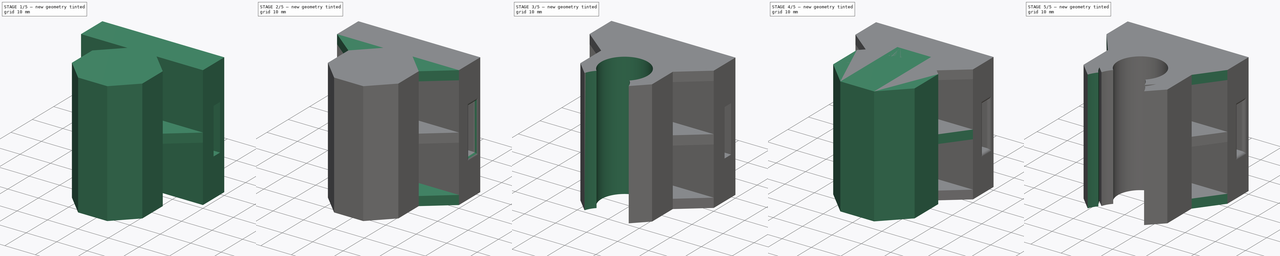
[diagram: build sequence overview — one tinted view per stage of 5, left to right]
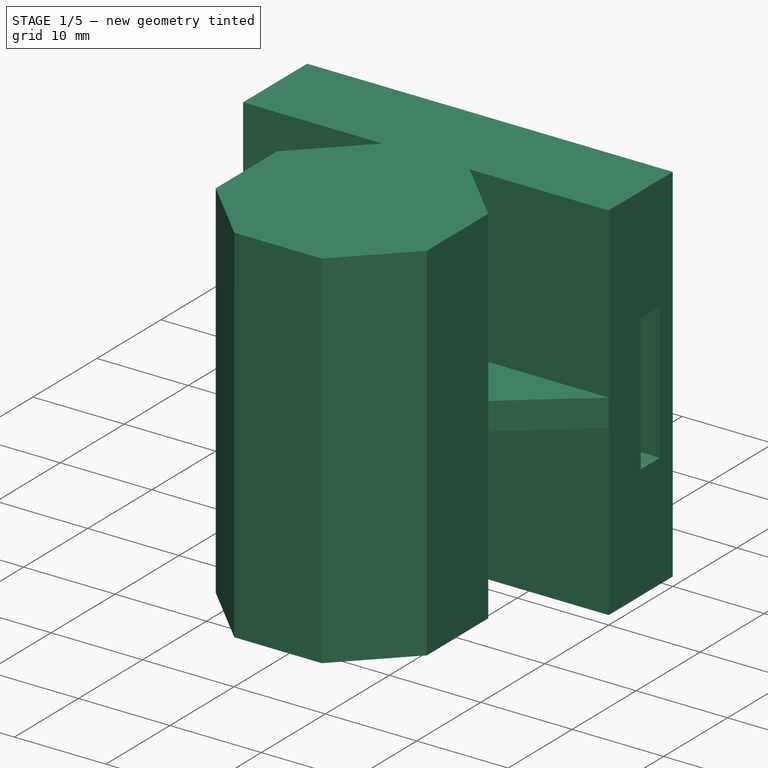
[diagram: stage 1 of 5 — iso view after this stage's code; geometry added in this stage tinted green]
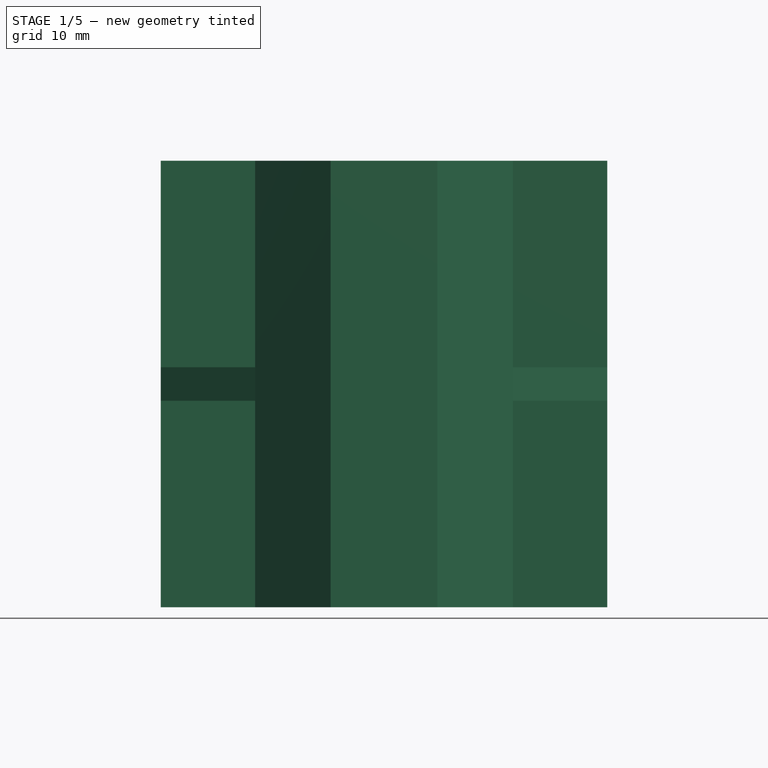
[diagram: stage 1 of 5 — front view after this stage's code; geometry added in this stage tinted green]
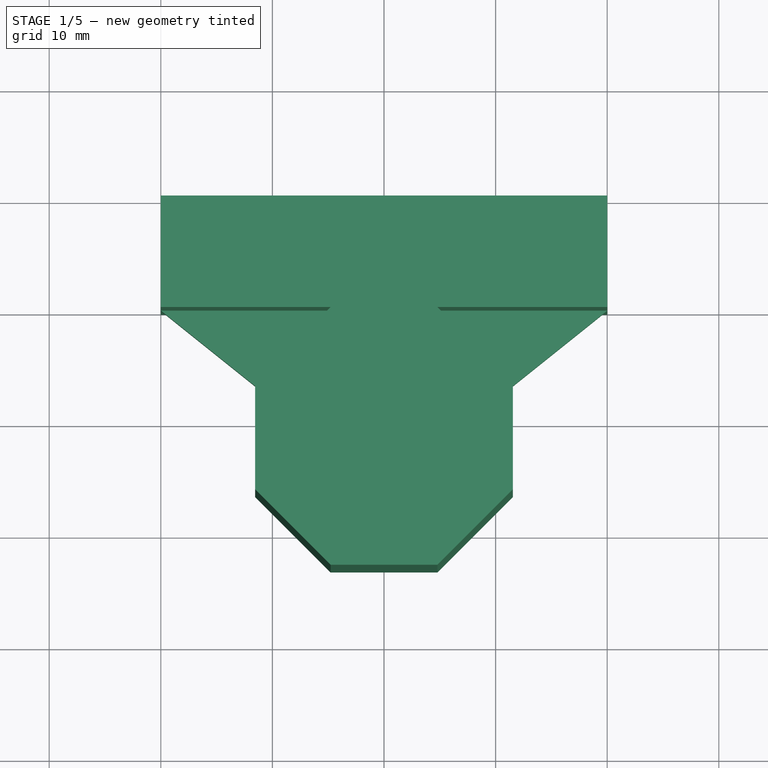
[diagram: stage 1 of 5 — top view after this stage's code; geometry added in this stage tinted green]
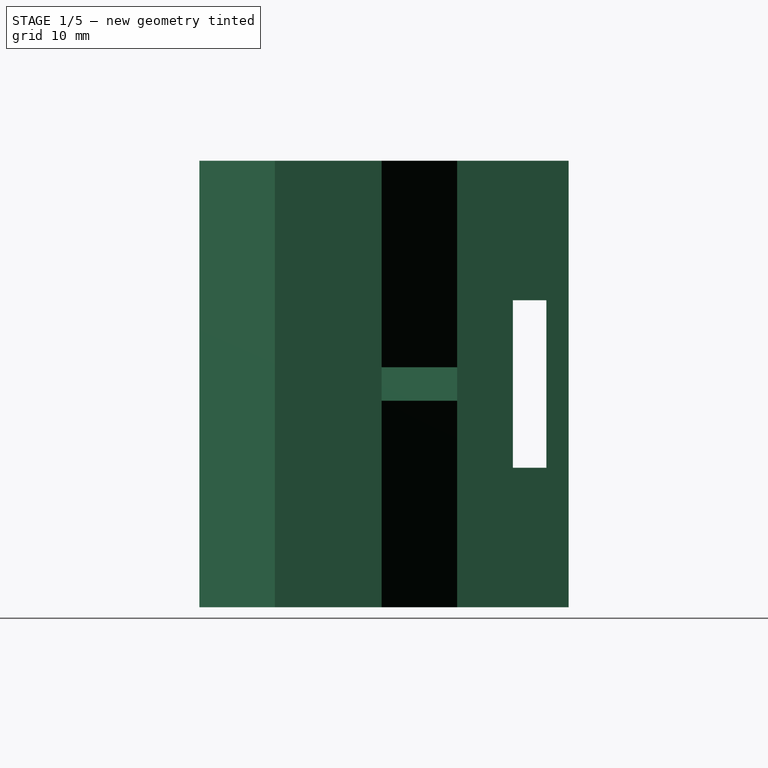
[diagram: stage 1 of 5 — right view after this stage's code; geometry added in this stage tinted green]
FCSTD DOCUMENT  (FreeCAD 0.19R24267 +148 (Git))
Label: rod_holder_shimano
License: All rights reserved
LicenseURL: http://en.wikipedia.org/wiki/All_rights_reserved
objects: Sketcher::SketchObject×12, PartDesign::Pad×6, PartDesign::Pocket×6, PartDesign::LinearPattern×4, Spreadsheet::Sheet×2, PartDesign::Fillet×2, PartDesign::Body×2
note: 46 computed .brp shape members not serialized (recipe doc carries the construction recipe); baked Part::Feature solids carry a one-line shape summary decoded from their .brp

FEATURE [PartDesign::Body] Body  label="large_holder"
  Group = -> [Sketch,Pad,Sketch001,Pocket,Sketch002,Pad001,Sketch003,Sketch004,Pad002,Fillet,LinearPattern,LinearPattern001,Pocket001,Sketch005,Pocket002]
  Origin = -> Origin
  Tip = -> Pocket002
FEATURE [Spreadsheet::Sheet] Spreadsheet001  label="Dimensions001"
  cells = A1=base_width; B1(base_width)=40; C1=rod_top_dia; D1(rod_top_dia)=15; E1=rod_bot_dia; F1(rod_bot_dia)=15; G1=loop_hole_height; H1(loop_hole_height)=15; I1=holder_thickness; J1(holder_thickness)=10; K1=gusset_width; L1(gusset_width)=3; A2=base_height; B2(base_height)=40; C2=rod_top_r; D2(rod_top_r)==D1 / 2; E2=rod_bot_r; F2==F1 / 2; G2=loop_hole_width; H2(loop_hole_width)=3; A3=base_depth; B3(base_depth)=10
FEATURE [Sketcher::SketchObject] Sketch006  label="Base001"
  FullyConstrained = true
  MapMode = 5
  Placement = pos=(0,0,0) rot=(1,0,0;1.5708rad)
  Support = -> [XZ_Plane001]
  expr: Constraints[9] = <<Dimensions001>>.base_width
  expr: Constraints[10] = <<Dimensions001>>.base_height
  sketch-geometry (4):
    g0: LineSegment StartX=-20 StartY=20 StartZ=0 EndX=20 EndY=20 EndZ=0
    g1: LineSegment StartX=20 StartY=20 StartZ=0 EndX=20 EndY=-20 EndZ=0
    g2: LineSegment StartX=20 StartY=-20 StartZ=0 EndX=-20 EndY=-20 EndZ=0
    g3: LineSegment StartX=-20 StartY=-20 StartZ=0 EndX=-20 EndY=20 EndZ=0
  constraints (11):
    c: Coincident(g0,g1)
    c: Coincident(g1,g2)
    c: Coincident(g2,g3)
    c: Coincident(g3,g0)
    c: Horizontal(g0)
    c: Horizontal(g2)
    c: Vertical(g1)
    c: Vertical(g3)
    c: Symmetric(g0,g1,g-1)
    c: DistanceX(g0,g0) = 40
    c: DistanceY(g3,g3) = 40
FEATURE [Sketcher::SketchObject] Sketch007  label="holder001"
  ExternalGeometry = -> [Sketch006]
  FullyConstrained = true
  MapMode = 5
  Support = -> [XY_Plane001]
  expr: Constraints[24] = <<Dimensions001>>.rod_bot_dia + <<Dimensions001>>.holder_thickness
  sketch-geometry (9):
    g0: LineSegment StartX=4.78354 StartY=-23.097 StartZ=0 EndX=11.5485 EndY=-16.332 EndZ=0
    g1: LineSegment StartX=11.5485 StartY=-16.332 StartZ=0 EndX=11.5485 EndY=-6.76495 EndZ=0
    g2: LineSegment StartX=11.5485 StartY=-6.76495 StartZ=0 EndX=4.78354 EndY=0 EndZ=0
    g3: LineSegment StartX=4.78354 StartY=0 StartZ=0 EndX=-4.78354 EndY=0 EndZ=0
    g4: LineSegment StartX=-4.78354 StartY=0 StartZ=0 EndX=-11.5485 EndY=-6.76495 EndZ=0
    g5: LineSegment StartX=-11.5485 StartY=-6.76495 StartZ=0 EndX=-11.5485 EndY=-16.332 EndZ=0
    g6: LineSegment StartX=-11.5485 StartY=-16.332 StartZ=0 EndX=-4.78354 EndY=-23.097 EndZ=0
    g7: LineSegment StartX=-4.78354 StartY=-23.097 StartZ=0 EndX=4.78354 EndY=-23.097 EndZ=0
    g8: Circle CenterX=1.107e-13 CenterY=-11.5485 CenterZ=0 NormalX=0 NormalY=0 NormalZ=1 AngleXU=0 Radius=12.5
  constraints (20):
    c: Coincident(g0,g1)
    c: Coincident(g1,g2)
    c: Coincident(g2,g3)
    c: Coincident(g3,g4)
    c: Coincident(g4,g5)
    c: Coincident(g5,g6)
    c: Coincident(g6,g7)
    c: Coincident(g7,g0)
    c: Equal(g0, g1-g7) x7
    c: PointOnObject(g0,g8)
    c: PointOnObject(g1,g8)
    c: PointOnObject(g2,g8)
    c: PointOnObject(g3,g8)
    c: PointOnObject(g4,g8)
    c: PointOnObject(g5,g8)
    c: PointOnObject(g6,g8)
    c: PointOnObject(g7,g8)
    c: Horizontal(g3)
    c: Diameter(g8) = 25
    c: Symmetric(g3,g2,g-1)
FEATURE [Sketcher::SketchObject] Sketch008  label="gussets001"
  ExternalGeometry = -> [Sketch006,Sketch007]
  FullyConstrained = true
  MapMode = 5
  Support = -> [XY_Plane001]
  sketch-geometry (6):
    g0: LineSegment StartX=-20 StartY=4.4e-15 StartZ=0 EndX=-11.5485 EndY=-6.76495 EndZ=0
    g1: LineSegment StartX=-11.5485 StartY=-6.76495 StartZ=0 EndX=-4.78354 EndY=0 EndZ=0
    g2: LineSegment StartX=-4.78354 StartY=0 StartZ=0 EndX=-20 EndY=4.4e-15 EndZ=0
    g3: LineSegment StartX=4.78354 StartY=0 StartZ=0 EndX=20 EndY=3.6e-15 EndZ=0
    g4: LineSegment StartX=20 StartY=3.6e-15 StartZ=0 EndX=11.5485 EndY=-6.76495 EndZ=0
    g5: LineSegment StartX=11.5485 StartY=-6.76495 StartZ=0 EndX=4.78354 EndY=0 EndZ=0
  constraints (12):
    c: Coincident(g1,g0)
    c: Coincident(g2,g1)
    c: Coincident(g2,g0)
    c: Coincident(g1,g-4)
    c: Coincident(g0,g-4)
    c: Coincident(g0,g-3)
    c: Coincident(g4,g3)
    c: Coincident(g5,g4)
    c: Coincident(g5,g3)
    c: Coincident(g3,g-3)
    c: Coincident(g4,g-5)
    c: Coincident(g3,g-5)
FEATURE [Sketcher::SketchObject] Sketch009  label="Loop_hole001"
  ExternalGeometry = -> [Sketch006]
  FullyConstrained = true
  MapMode = 5
  Placement = pos=(0,0,0) rot=(0.57735,0.57735,0.57735;2.0944rad)
  Support = -> [YZ_Plane001]
  expr: Constraints[8] = <<Dimensions001>>.loop_hole_height
  expr: Constraints[9] = <<Dimensions001>>.loop_hole_width
  expr: Constraints[10] = -<<Dimensions001>>.base_depth / 2 - <<Dimensions001>>.loop_hole_width
  expr: Constraints[11] = <<Dimensions001>>.base_height / 2 - <<Dimensions001>>.loop_hole_height / 2
  sketch-geometry (4):
    g0: LineSegment StartX=5 StartY=7.5 StartZ=0 EndX=8 EndY=7.5 EndZ=0
    g1: LineSegment StartX=8 StartY=7.5 StartZ=0 EndX=8 EndY=-7.5 EndZ=0
    g2: LineSegment StartX=8 StartY=-7.5 StartZ=0 EndX=5 EndY=-7.5 EndZ=0
    g3: LineSegment StartX=5 StartY=-7.5 StartZ=0 EndX=5 EndY=7.5 EndZ=0
  constraints (12):
    c: Coincident(g0,g1)
    c: Coincident(g1,g2)
    c: Coincident(g2,g3)
    c: Coincident(g3,g0)
    c: Horizontal(g0)
    c: Horizontal(g2)
    c: Vertical(g1)
    c: Vertical(g3)
    c: DistanceY(g3,g3) = 15
    c: DistanceX(g0,g0) = 3
    c: DistanceX(g0,g-1) = -8
    c: DistanceY(g0,g-3) = 12.5
FEATURE [PartDesign::Pad] Pad003
  Direction = (1,1,1)
  Length = 10
  Length2 = 100
  Placement = pos=(0,0,0) rot=(1,0,0;1.5708rad)
  Profile = -> Sketch006
  Reversed = true
  Type = 0
  expr: Length = <<Dimensions001>>.base_depth
FEATURE [PartDesign::Pocket] Pocket003
  BaseFeature = -> Pad003
  Length = 40
  Length2 = 40
  Placement = pos=(0,0,0) rot=(1,0,0;1.5708rad)
  Profile = -> Sketch009
  Type = 4
  expr: Length = <<Dimensions001>>.base_width
  expr: Length2 = <<Dimensions001>>.base_width
FEATURE [PartDesign::Pad] Pad004
  BaseFeature = -> Pocket003
  Direction = (1,1,1)
  Length = 20
  Length2 = 20
  Placement = pos=(0,0,0) rot=(1,0,0;1.5708rad)
  Profile = -> Sketch007
  Type = 4
  expr: Length = <<Dimensions001>>.base_height / 2
  expr: Length2 = <<Dimensions001>>.base_height / 2
FEATURE [Sketcher::SketchObject] Sketch010  label="rod_cutout001"
  ExternalGeometry = -> [Sketch006,Sketch007]
  FullyConstrained = true
  MapMode = 5
  Support = -> [XY_Plane001]
  expr: Constraints[1] = <<Dimensions001>>.rod_bot_dia
  expr: Constraints[2] = <<Dimensions001>>.rod_bot_dia / 2 + <<Dimensions001>>.holder_thickness / 2
  sketch-geometry (1):
    g0: Circle CenterX=0 CenterY=-12.5 CenterZ=0 NormalX=0 NormalY=0 NormalZ=1 AngleXU=0 Radius=7.5
  constraints (3):
    c: PointOnObject(g0,g-2)
    c: Diameter(g0) = 15
    c: DistanceY(g0,g-1) = 12.5
FEATURE [Sketcher::SketchObject] Sketch011
  ExternalGeometry = -> [Sketch006,Sketch007,Sketch010]
  FullyConstrained = true
  MapMode = 5
  Support = -> [XY_Plane001]
  expr: Constraints[2] = <<Dimensions001>>.rod_bot_dia
  sketch-geometry (1):
    g0: Circle CenterX=0 CenterY=-23.097 CenterZ=0 NormalX=0 NormalY=0 NormalZ=1 AngleXU=0 Radius=7.5
  constraints (3):
    c: Perpendicular(g0,g-6)
    c: PointOnObject(g0,g-2)
    c: Diameter(g0) = 15
FEATURE [PartDesign::Pad] Pad005
  BaseFeature = -> Pad004
  Direction = (1,1,1)
  Length = 1.5
  Length2 = 1.5
  Placement = pos=(0,0,0) rot=(1,0,0;1.5708rad)
  Profile = -> Sketch008
  Reversed = true
  Type = 4
  expr: Length = <<Dimensions001>>.gusset_width / 2
  expr: Length2 = <<Dimensions001>>.gusset_width / 2
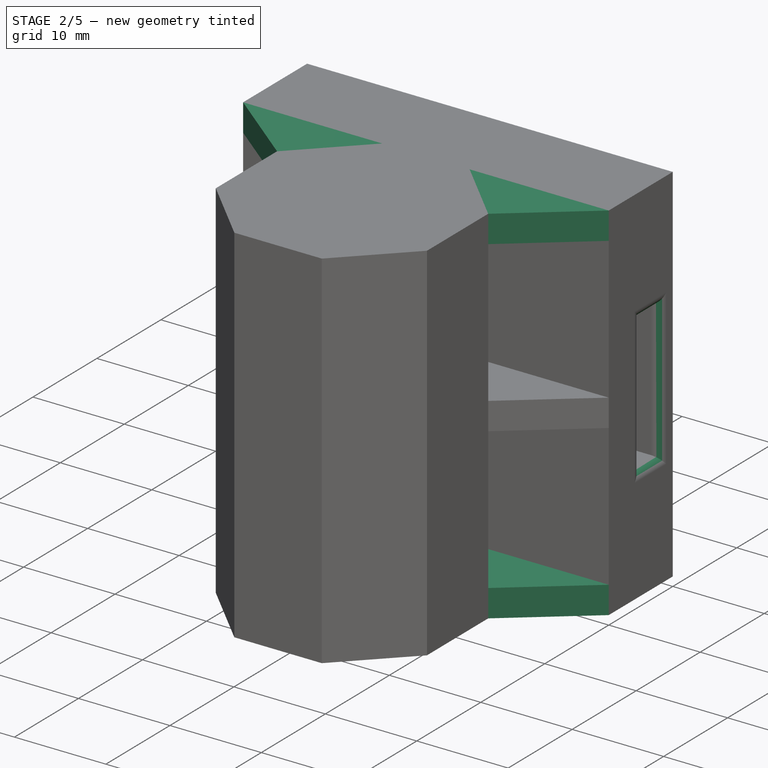
[diagram: stage 2 of 5 — iso view after this stage's code; geometry added in this stage tinted green]
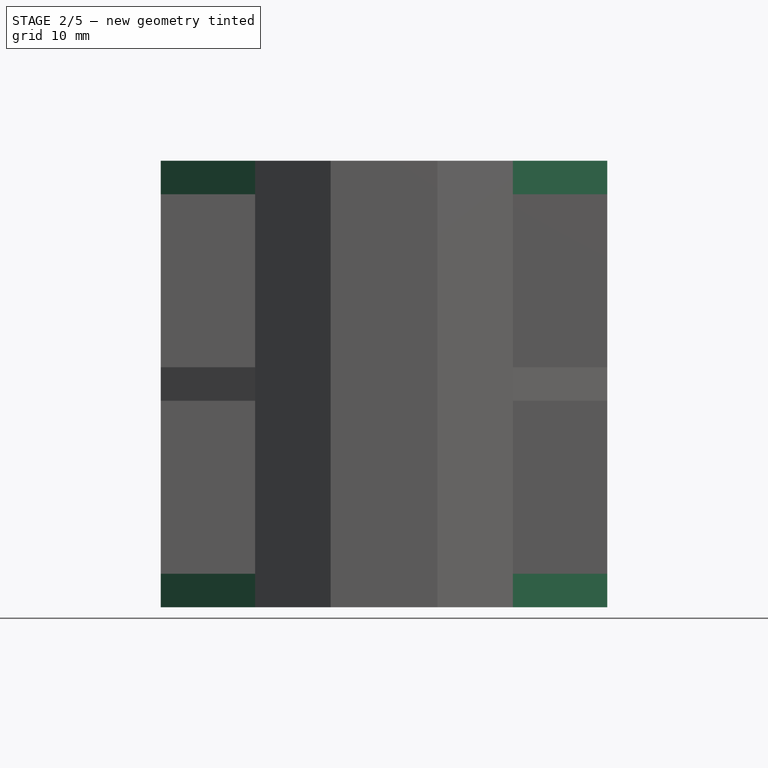
[diagram: stage 2 of 5 — front view after this stage's code; geometry added in this stage tinted green]
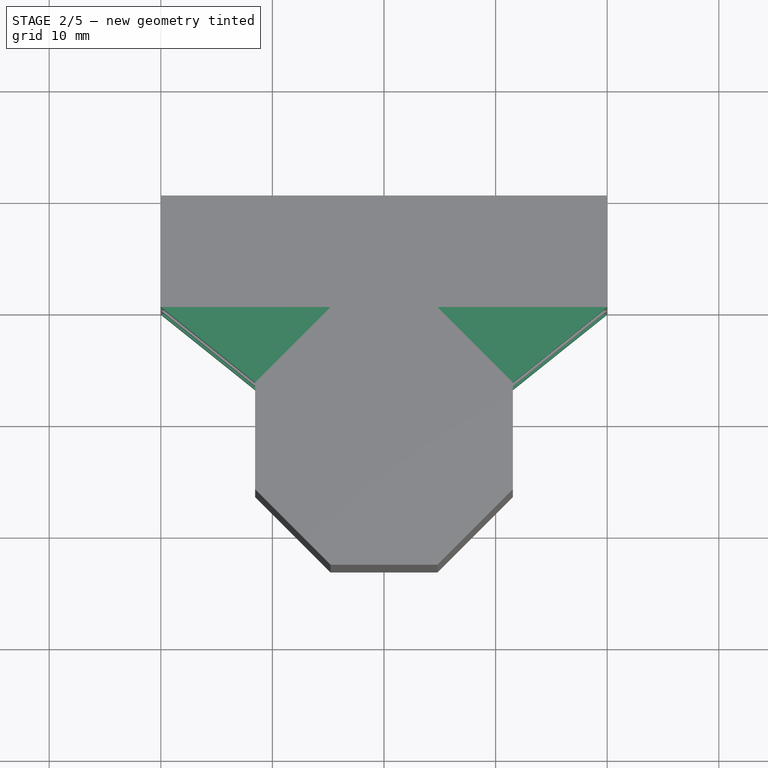
[diagram: stage 2 of 5 — top view after this stage's code; geometry added in this stage tinted green]
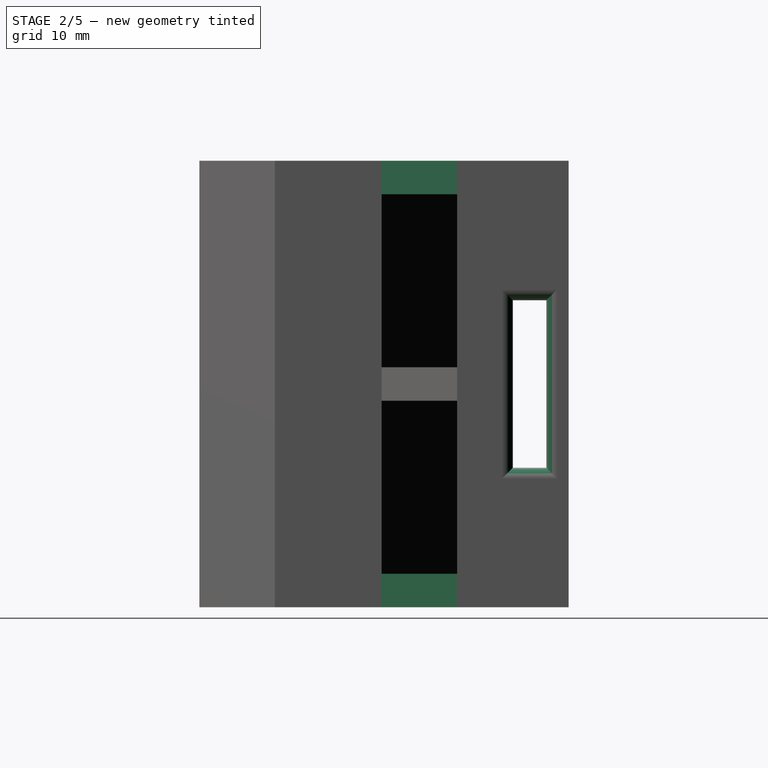
[diagram: stage 2 of 5 — right view after this stage's code; geometry added in this stage tinted green]
FEATURE [PartDesign::Fillet] Fillet001
  Base = -> Pad005 [Edge23,Edge24,Edge21,Edge22,Edge15,Edge12,Edge14,Edge13]
  BaseFeature = -> Pad005
  Placement = pos=(0,0,0) rot=(1,0,0;1.5708rad)
  Radius = 1
  SupportTransform = false
FEATURE [PartDesign::LinearPattern] LinearPattern003
  BaseFeature = -> Fillet001
  Direction = -> Sketch008 [N_Axis]
  Length = 18.5
  Occurrences = 2
  Originals = -> [Pad005]
  Placement = pos=(0,0,0) rot=(1,0,0;1.5708rad)
  Reversed = true
  expr: Length = <<Dimensions001>>.base_height / 2 - <<Dimensions001>>.gusset_width / 2
FEATURE [PartDesign::LinearPattern] LinearPattern002
  BaseFeature = -> LinearPattern003
  Direction = -> Sketch008 [N_Axis]
  Length = 18.5
  Occurrences = 2
  Originals = -> [Pad005]
  Placement = pos=(0,0,0) rot=(1,0,0;1.5708rad)
  expr: Length = <<Dimensions001>>.base_height / 2 - <<Dimensions001>>.gusset_width / 2
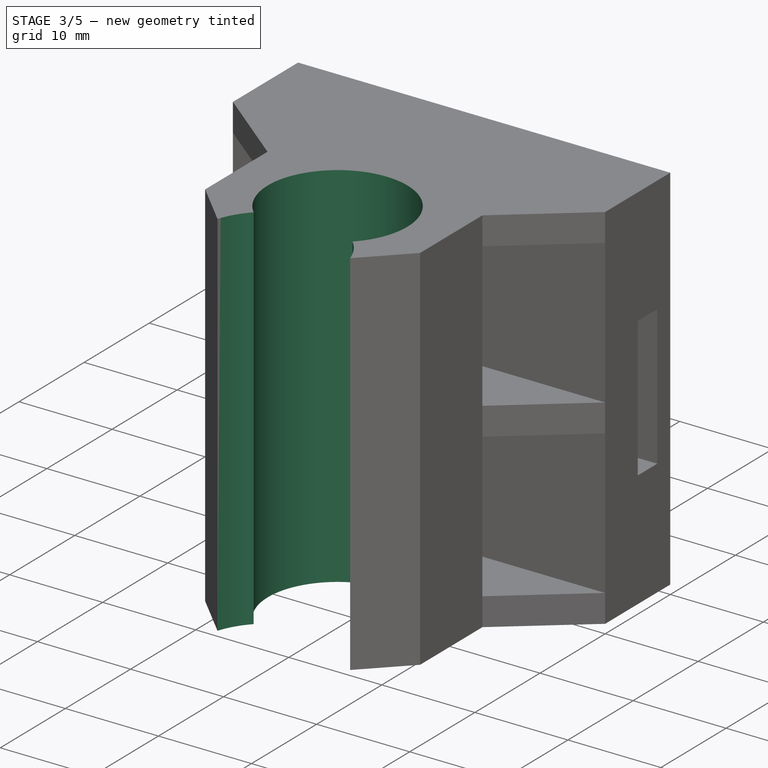
[diagram: stage 3 of 5 — iso view after this stage's code; geometry added in this stage tinted green]
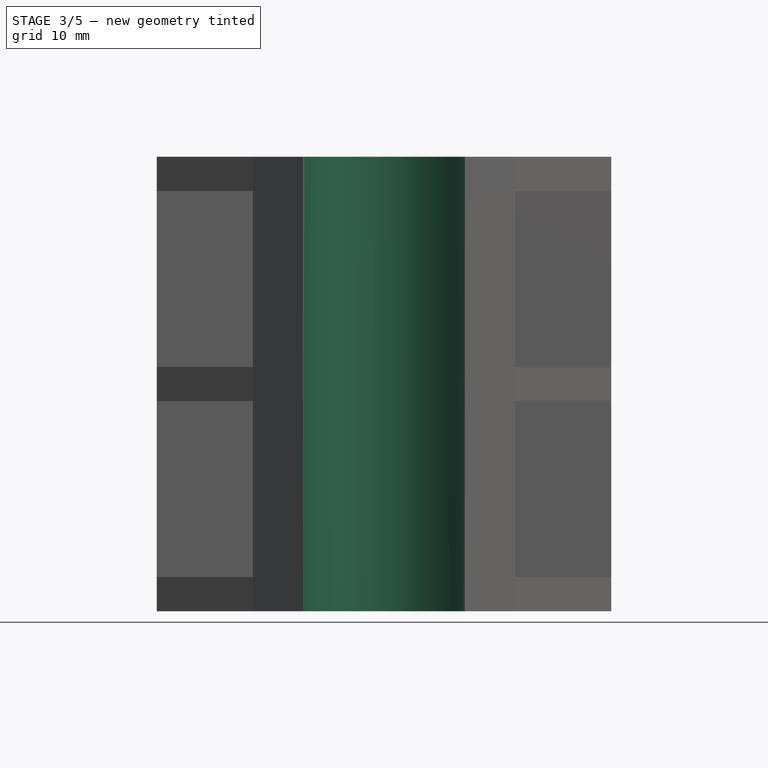
[diagram: stage 3 of 5 — front view after this stage's code; geometry added in this stage tinted green]
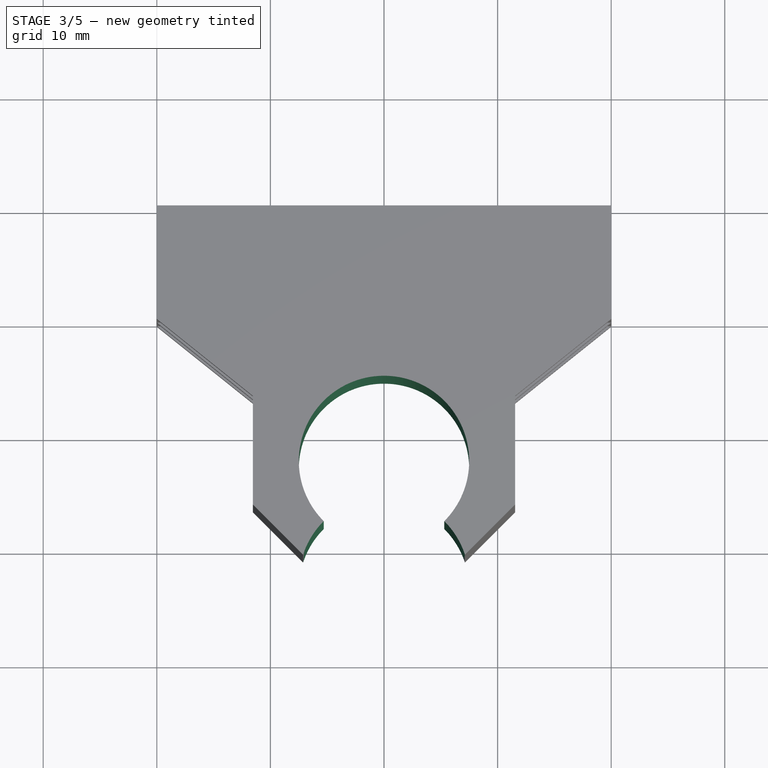
[diagram: stage 3 of 5 — top view after this stage's code; geometry added in this stage tinted green]
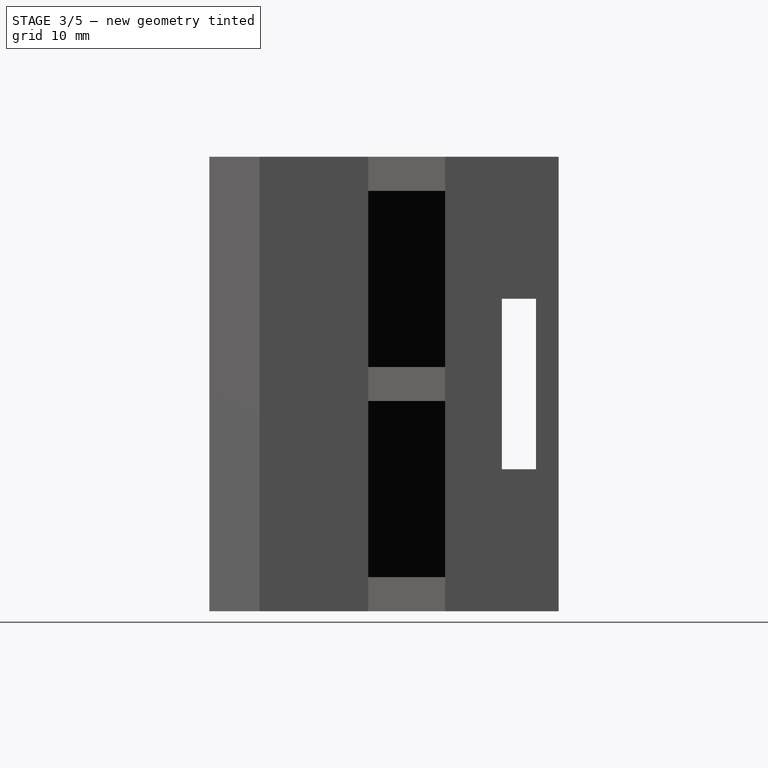
[diagram: stage 3 of 5 — right view after this stage's code; geometry added in this stage tinted green]
FEATURE [Spreadsheet::Sheet] Spreadsheet  label="Dimensions"
  cells = A1=base_width; B1(base_width)=40; C1=rod_top_dia; D1(rod_top_dia)=15; E1=rod_bot_dia; F1(rod_bot_dia)=20; G1=loop_hole_height; H1(loop_hole_height)=15; I1=holder_thickness; J1(holder_thickness)=10; K1=gusset_width; L1(gusset_width)=3; A2=base_height; B2(base_height)=40; C2=rod_top_r; D2(rod_top_r)==D1 / 2; E2=rod_bot_r; F2==F1 / 2; G2=loop_hole_width; H2(loop_hole_width)=3; A3=base_depth; B3(base_depth)=10
FEATURE [Sketcher::SketchObject] Sketch  label="Base"
  FullyConstrained = true
  MapMode = 5
  Placement = pos=(0,0,0) rot=(1,0,0;1.5708rad)
  Support = -> [XZ_Plane]
  expr: Constraints[10] = <<Dimensions>>.base_height
  expr: Constraints[9] = <<Dimensions>>.base_width
  sketch-geometry (4):
    g0: LineSegment StartX=-20 StartY=20 StartZ=0 EndX=20 EndY=20 EndZ=0
    g1: LineSegment StartX=20 StartY=20 StartZ=0 EndX=20 EndY=-20 EndZ=0
    g2: LineSegment StartX=20 StartY=-20 StartZ=0 EndX=-20 EndY=-20 EndZ=0
    g3: LineSegment StartX=-20 StartY=-20 StartZ=0 EndX=-20 EndY=20 EndZ=0
  constraints (11):
    c: Coincident(g0,g1)
    c: Coincident(g1,g2)
    c: Coincident(g2,g3)
    c: Coincident(g3,g0)
    c: Horizontal(g0)
    c: Horizontal(g2)
    c: Vertical(g1)
    c: Vertical(g3)
    c: Symmetric(g0,g1,g-1)
    c: DistanceX(g0,g0) = 40
    c: DistanceY(g3,g3) = 40
FEATURE [PartDesign::Pad] Pad
  Direction = (1,1,1)
  Length = 10
  Length2 = 100
  Placement = pos=(0,0,0) rot=(1,0,0;1.5708rad)
  Profile = -> Sketch
  Reversed = true
  Type = 0
  expr: Length = <<Dimensions>>.base_depth
FEATURE [Sketcher::SketchObject] Sketch001  label="Loop_hole"
  ExternalGeometry = -> [Sketch]
  FullyConstrained = true
  MapMode = 5
  Placement = pos=(0,0,0) rot=(0.57735,0.57735,0.57735;2.0944rad)
  Support = -> [YZ_Plane]
  expr: Constraints[11] = <<Dimensions>>.base_height / 2 - <<Dimensions>>.loop_hole_height / 2
  expr: Constraints[10] = -<<Dimensions>>.base_depth / 2 - <<Dimensions>>.loop_hole_width
  expr: Constraints[9] = <<Dimensions>>.loop_hole_width
  expr: Constraints[8] = <<Dimensions>>.loop_hole_height
  sketch-geometry (4):
    g0: LineSegment StartX=5 StartY=7.5 StartZ=0 EndX=8 EndY=7.5 EndZ=0
    g1: LineSegment StartX=8 StartY=7.5 StartZ=0 EndX=8 EndY=-7.5 EndZ=0
    g2: LineSegment StartX=8 StartY=-7.5 StartZ=0 EndX=5 EndY=-7.5 EndZ=0
    g3: LineSegment StartX=5 StartY=-7.5 StartZ=0 EndX=5 EndY=7.5 EndZ=0
  constraints (12):
    c: Coincident(g0,g1)
    c: Coincident(g1,g2)
    c: Coincident(g2,g3)
    c: Coincident(g3,g0)
    c: Horizontal(g0)
    c: Horizontal(g2)
    c: Vertical(g1)
    c: Vertical(g3)
    c: DistanceY(g3,g3) = 15
    c: DistanceX(g0,g0) = 3
    c: DistanceX(g0,g-1) = -8
    c: DistanceY(g0,g-3) = 12.5
FEATURE [PartDesign::Pocket] Pocket
  BaseFeature = -> Pad
  Length = 40
  Length2 = 40
  Placement = pos=(0,0,0) rot=(1,0,0;1.5708rad)
  Profile = -> Sketch001
  Type = 4
  expr: Length2 = <<Dimensions>>.base_width
  expr: Length = <<Dimensions>>.base_width
FEATURE [PartDesign::Pocket] Pocket004
  BaseFeature = -> LinearPattern002
  Length = 20
  Length2 = 20
  Placement = pos=(0,0,0) rot=(1,0,0;1.5708rad)
  Profile = -> Sketch010
  Type = 4
  expr: Length = <<Dimensions001>>.base_height / 2
  expr: Length2 = <<Dimensions001>>.base_height / 2
FEATURE [PartDesign::Pocket] Pocket005
  BaseFeature = -> Pocket004
  Length = 20
  Length2 = 20
  Placement = pos=(0,0,0) rot=(1,0,0;1.5708rad)
  Profile = -> Sketch011
  Type = 4
  expr: Length = <<Dimensions001>>.base_height / 2
  expr: Length2 = <<Dimensions001>>.base_height / 2
FEATURE [PartDesign::Body] Body001  label="small_holder"
  Group = -> [Sketch006,Pad003,Sketch009,Pocket003,Sketch007,Pad004,Sketch010,Sketch008,Pad005,Fillet001,LinearPattern003,LinearPattern002,Pocket004,Sketch011,Pocket005]
  Origin = -> Origin001
  Placement = pos=(50,0,0) rot=(0,0,1;0rad)
  Tip = -> Pocket005
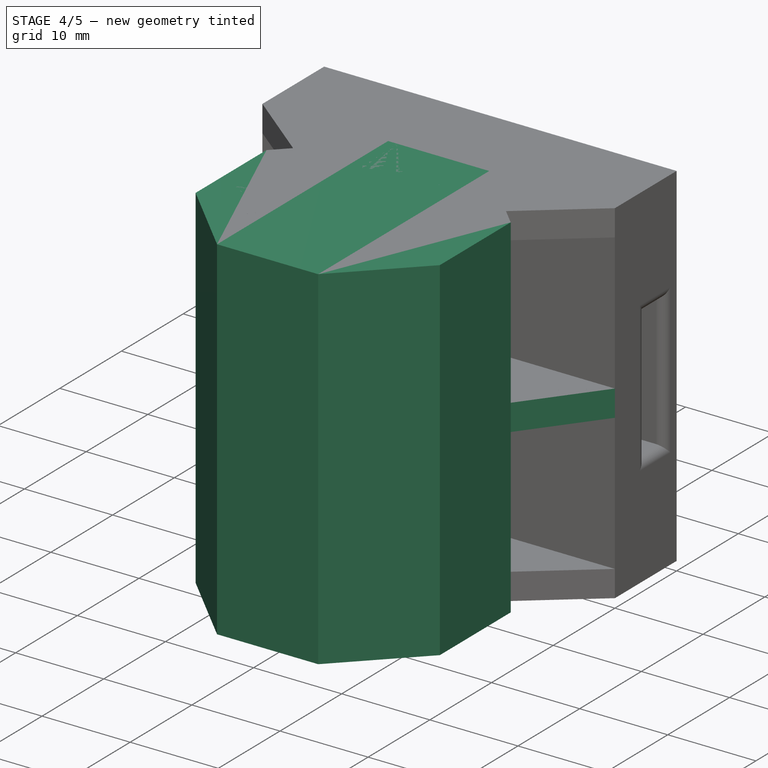
[diagram: stage 4 of 5 — iso view after this stage's code; geometry added in this stage tinted green]
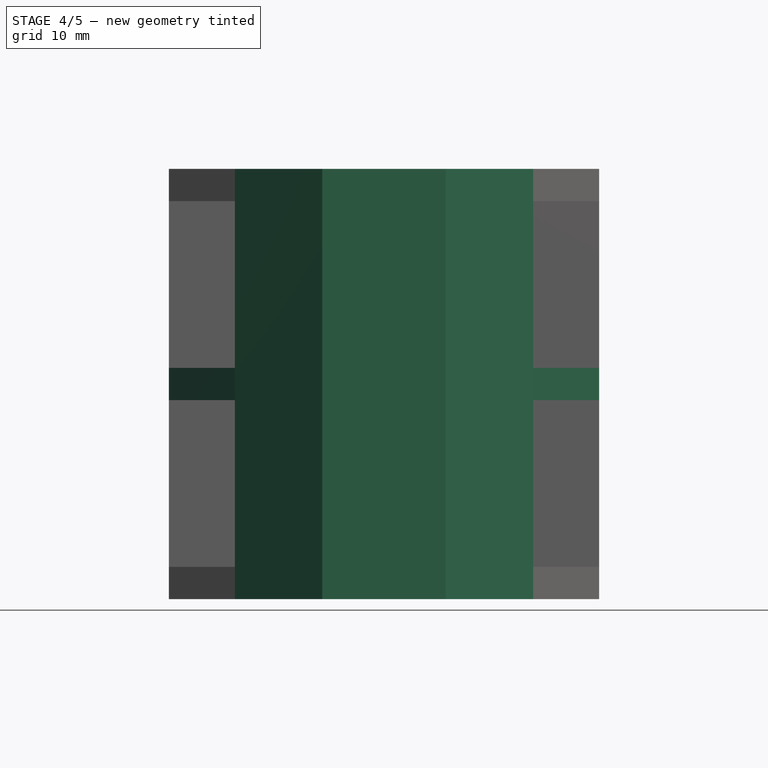
[diagram: stage 4 of 5 — front view after this stage's code; geometry added in this stage tinted green]
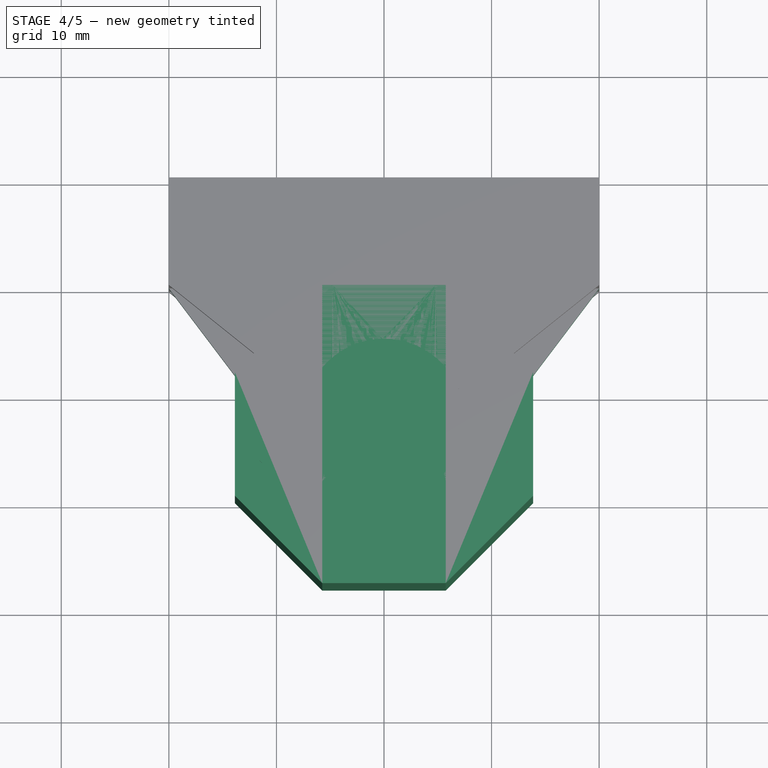
[diagram: stage 4 of 5 — top view after this stage's code; geometry added in this stage tinted green]
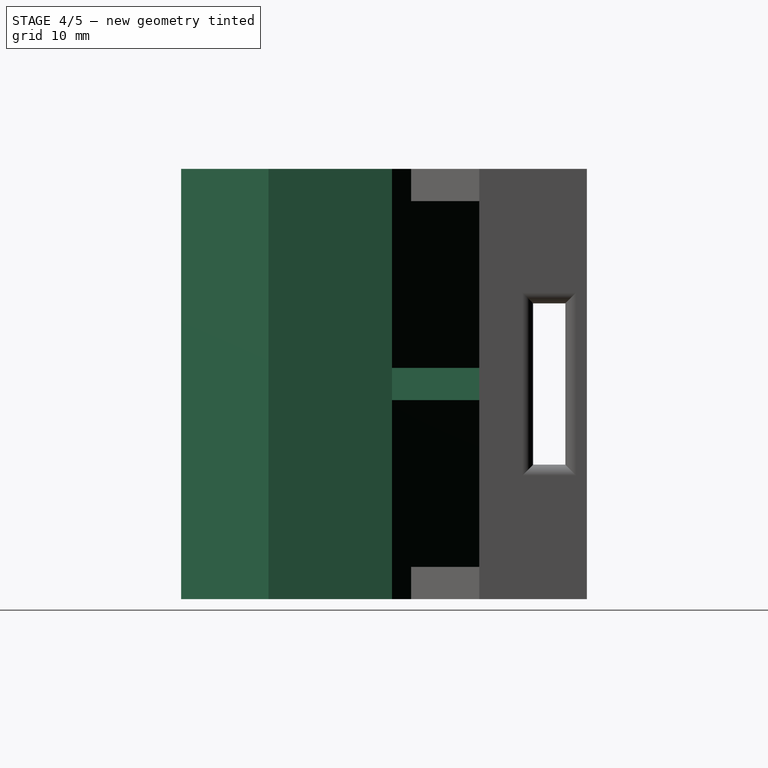
[diagram: stage 4 of 5 — right view after this stage's code; geometry added in this stage tinted green]
FEATURE [Sketcher::SketchObject] Sketch002  label="holder"
  ExternalGeometry = -> [Sketch]
  FullyConstrained = true
  MapMode = 5
  Support = -> [XY_Plane]
  expr: Constraints[24] = <<Dimensions>>.rod_bot_dia + <<Dimensions>>.holder_thickness
  sketch-geometry (9):
    g0: LineSegment StartX=5.74025 StartY=-27.7164 StartZ=0 EndX=13.8582 EndY=-19.5984 EndZ=0
    g1: LineSegment StartX=13.8582 StartY=-19.5984 StartZ=0 EndX=13.8582 EndY=-8.11794 EndZ=0
    g2: LineSegment StartX=13.8582 StartY=-8.11794 StartZ=0 EndX=5.74025 EndY=0 EndZ=0
    g3: LineSegment StartX=5.74025 StartY=0 StartZ=0 EndX=-5.74025 EndY=0 EndZ=0
    g4: LineSegment StartX=-5.74025 StartY=0 StartZ=0 EndX=-13.8582 EndY=-8.11794 EndZ=0
    g5: LineSegment StartX=-13.8582 StartY=-8.11794 StartZ=0 EndX=-13.8582 EndY=-19.5984 EndZ=0
    g6: LineSegment StartX=-13.8582 StartY=-19.5984 StartZ=0 EndX=-5.74025 EndY=-27.7164 EndZ=0
    g7: LineSegment StartX=-5.74025 StartY=-27.7164 StartZ=0 EndX=5.74025 EndY=-27.7164 EndZ=0
    g8: Circle CenterX=-5e-16 CenterY=-13.8582 CenterZ=0 NormalX=0 NormalY=0 NormalZ=1 AngleXU=0 Radius=15
  constraints (20):
    c: Coincident(g0,g1)
    c: Coincident(g1,g2)
    c: Coincident(g2,g3)
    c: Coincident(g3,g4)
    c: Coincident(g4,g5)
    c: Coincident(g5,g6)
    c: Coincident(g6,g7)
    c: Coincident(g7,g0)
    c: Equal(g0, g1-g7) x7
    c: PointOnObject(g0,g8)
    c: PointOnObject(g1,g8)
    c: PointOnObject(g2,g8)
    c: PointOnObject(g3,g8)
    c: PointOnObject(g4,g8)
    c: PointOnObject(g5,g8)
    c: PointOnObject(g6,g8)
    c: PointOnObject(g7,g8)
    c: Horizontal(g3)
    c: Diameter(g8) = 30
    c: Symmetric(g3,g2,g-1)
FEATURE [PartDesign::Pad] Pad001
  BaseFeature = -> Pocket
  Direction = (1,1,1)
  Length = 20
  Length2 = 20
  Placement = pos=(0,0,0) rot=(1,0,0;1.5708rad)
  Profile = -> Sketch002
  Type = 4
  expr: Length2 = <<Dimensions>>.base_height / 2
  expr: Length = <<Dimensions>>.base_height / 2
FEATURE [Sketcher::SketchObject] Sketch003  label="rod_cutout"
  ExternalGeometry = -> [Sketch,Sketch002]
  FullyConstrained = true
  MapMode = 5
  Support = -> [XY_Plane]
  expr: Constraints[2] = <<Dimensions>>.rod_bot_dia / 2 + <<Dimensions>>.holder_thickness / 2
  expr: Constraints[1] = <<Dimensions>>.rod_bot_dia
  sketch-geometry (1):
    g0: Circle CenterX=0 CenterY=-15 CenterZ=0 NormalX=0 NormalY=0 NormalZ=1 AngleXU=0 Radius=10
  constraints (3):
    c: PointOnObject(g0,g-2)
    c: Diameter(g0) = 20
    c: DistanceY(g0,g-1) = 15
FEATURE [Sketcher::SketchObject] Sketch004  label="gussets"
  ExternalGeometry = -> [Sketch,Sketch002]
  FullyConstrained = true
  MapMode = 5
  Support = -> [XY_Plane]
  sketch-geometry (6):
    g0: LineSegment StartX=-20 StartY=4.4e-15 StartZ=0 EndX=-13.8582 EndY=-8.11794 EndZ=0
    g1: LineSegment StartX=-13.8582 StartY=-8.11794 StartZ=0 EndX=-5.74025 EndY=0 EndZ=0
    g2: LineSegment StartX=-5.74025 StartY=0 StartZ=0 EndX=-20 EndY=4.4e-15 EndZ=0
    g3: LineSegment StartX=5.74025 StartY=0 StartZ=0 EndX=20 EndY=3.6e-15 EndZ=0
    g4: LineSegment StartX=20 StartY=3.6e-15 StartZ=0 EndX=13.8582 EndY=-8.11794 EndZ=0
    g5: LineSegment StartX=13.8582 StartY=-8.11794 StartZ=0 EndX=5.74025 EndY=0 EndZ=0
  constraints (12):
    c: Coincident(g1,g0)
    c: Coincident(g2,g1)
    c: Coincident(g2,g0)
    c: Coincident(g1,g-4)
    c: Coincident(g0,g-4)
    c: Coincident(g0,g-3)
    c: Coincident(g4,g3)
    c: Coincident(g5,g4)
    c: Coincident(g5,g3)
    c: Coincident(g3,g-3)
    c: Coincident(g4,g-5)
    c: Coincident(g3,g-5)
FEATURE [PartDesign::Pad] Pad002
  BaseFeature = -> Pad001
  Direction = (1,1,1)
  Length = 1.5
  Length2 = 1.5
  Placement = pos=(0,0,0) rot=(1,0,0;1.5708rad)
  Profile = -> Sketch004
  Reversed = true
  Type = 4
  expr: Length2 = <<Dimensions>>.gusset_width / 2
  expr: Length = <<Dimensions>>.gusset_width / 2
FEATURE [PartDesign::Fillet] Fillet
  Base = -> Pad002 [Edge23,Edge24,Edge21,Edge22,Edge15,Edge12,Edge14,Edge13]
  BaseFeature = -> Pad002
  Placement = pos=(0,0,0) rot=(1,0,0;1.5708rad)
  Radius = 1
  SupportTransform = false
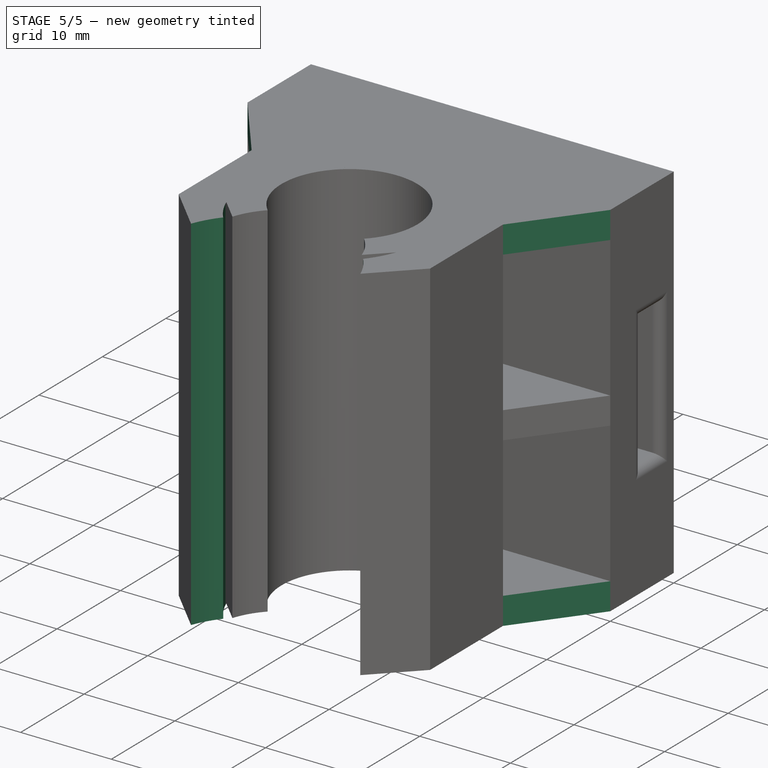
[diagram: stage 5 of 5 — iso view after this stage's code; geometry added in this stage tinted green]
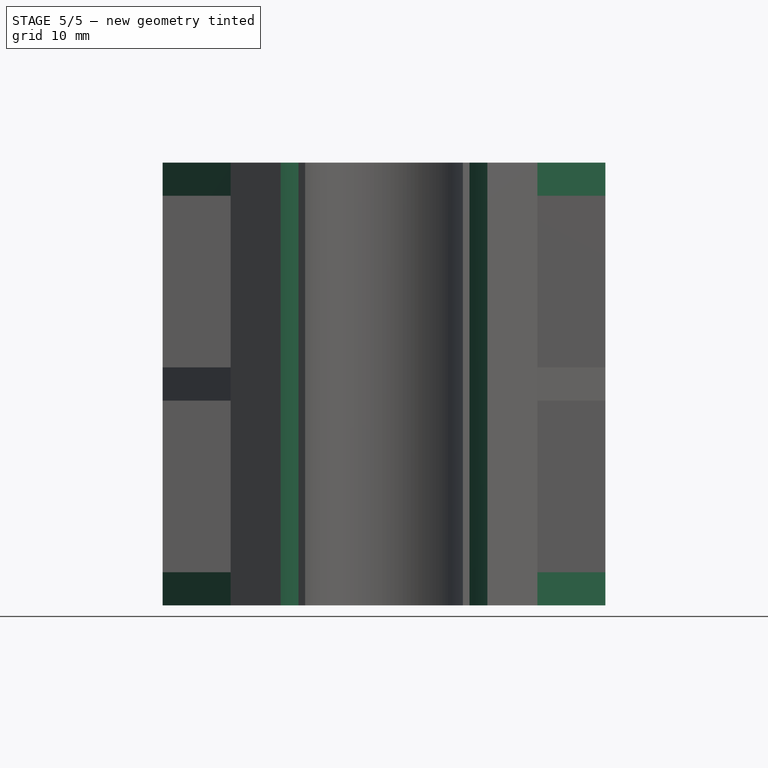
[diagram: stage 5 of 5 — front view after this stage's code; geometry added in this stage tinted green]
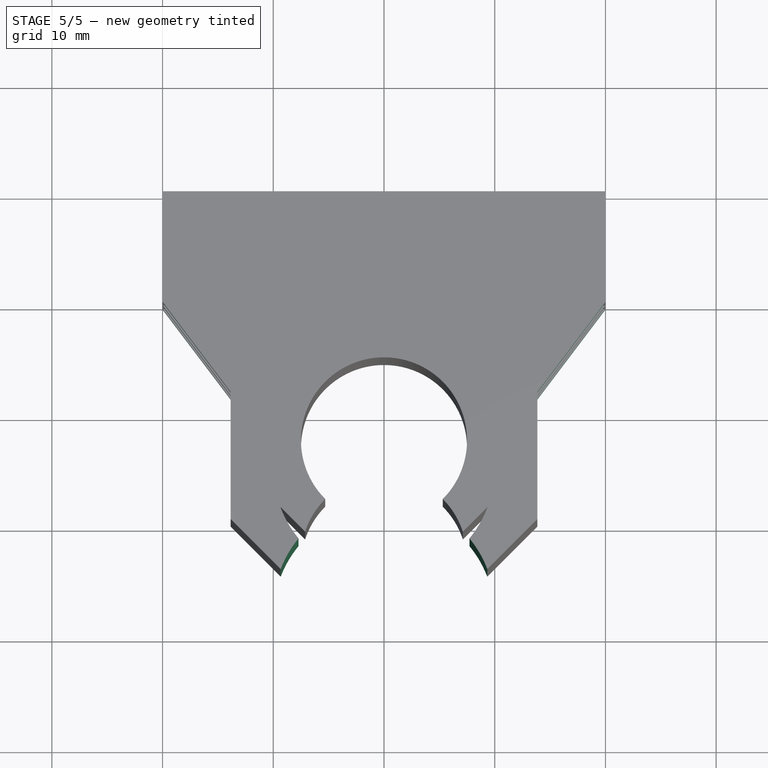
[diagram: stage 5 of 5 — top view after this stage's code; geometry added in this stage tinted green]
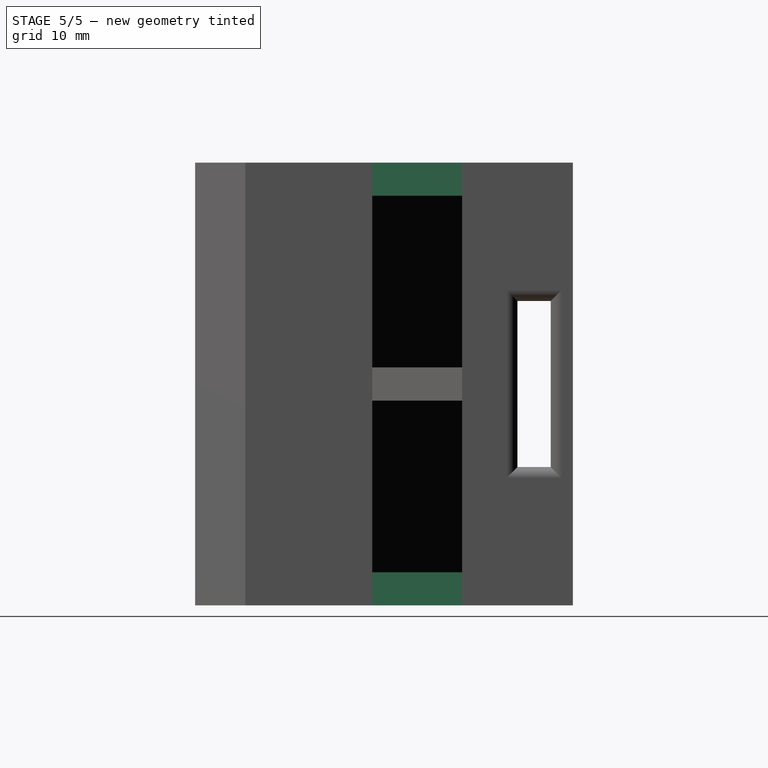
[diagram: stage 5 of 5 — right view after this stage's code; geometry added in this stage tinted green]
FEATURE [PartDesign::LinearPattern] LinearPattern
  BaseFeature = -> Fillet
  Direction = -> Sketch004 [N_Axis]
  Length = 18.5
  Occurrences = 2
  Originals = -> [Pad002]
  Placement = pos=(0,0,0) rot=(1,0,0;1.5708rad)
  Reversed = true
  expr: Length = <<Dimensions>>.base_height / 2 - <<Dimensions>>.gusset_width / 2
FEATURE [PartDesign::LinearPattern] LinearPattern001
  BaseFeature = -> LinearPattern
  Direction = -> Sketch004 [N_Axis]
  Length = 18.5
  Occurrences = 2
  Originals = -> [Pad002]
  Placement = pos=(0,0,0) rot=(1,0,0;1.5708rad)
  expr: Length = <<Dimensions>>.base_height / 2 - <<Dimensions>>.gusset_width / 2
FEATURE [PartDesign::Pocket] Pocket001
  BaseFeature = -> LinearPattern001
  Length = 20
  Length2 = 20
  Placement = pos=(0,0,0) rot=(1,0,0;1.5708rad)
  Profile = -> Sketch003
  Type = 4
  expr: Length2 = <<Dimensions>>.base_height / 2
  expr: Length = <<Dimensions>>.base_height / 2
FEATURE [Sketcher::SketchObject] Sketch005
  ExternalGeometry = -> [Sketch,Sketch002,Sketch003]
  FullyConstrained = true
  MapMode = 5
  Support = -> [XY_Plane]
  expr: Constraints[2] = <<Dimensions>>.rod_bot_dia
  sketch-geometry (1):
    g0: Circle CenterX=0 CenterY=-27.7164 CenterZ=0 NormalX=0 NormalY=0 NormalZ=1 AngleXU=0 Radius=10
  constraints (3):
    c: Perpendicular(g0,g-6)
    c: PointOnObject(g0,g-2)
    c: Diameter(g0) = 20
FEATURE [PartDesign::Pocket] Pocket002
  BaseFeature = -> Pocket001
  Length = 20
  Length2 = 20
  Placement = pos=(0,0,0) rot=(1,0,0;1.5708rad)
  Profile = -> Sketch005
  Type = 4
  expr: Length2 = <<Dimensions>>.base_height / 2
  expr: Length = <<Dimensions>>.base_height / 2
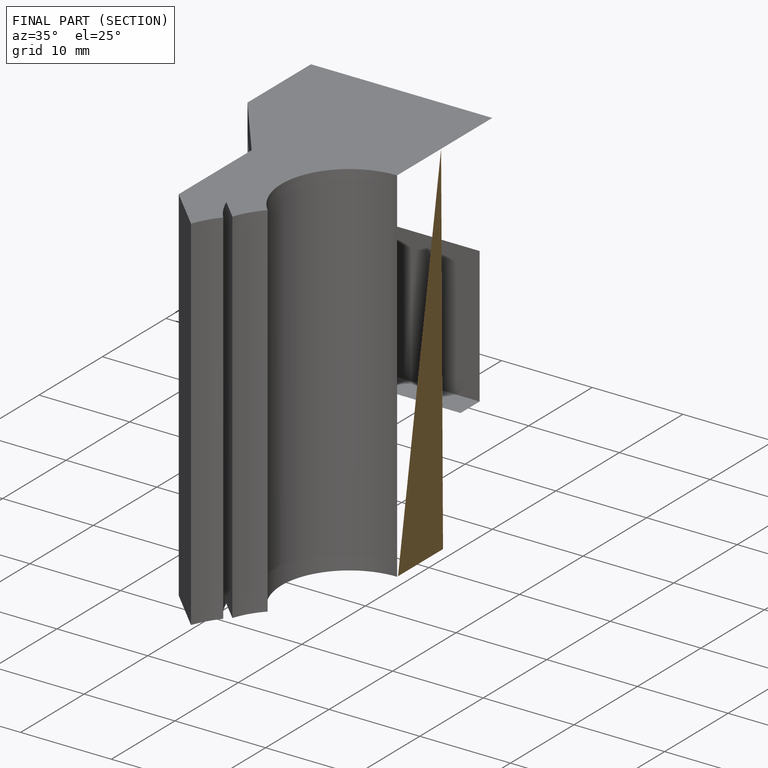
[diagram: finished part — half-section view (interior)]
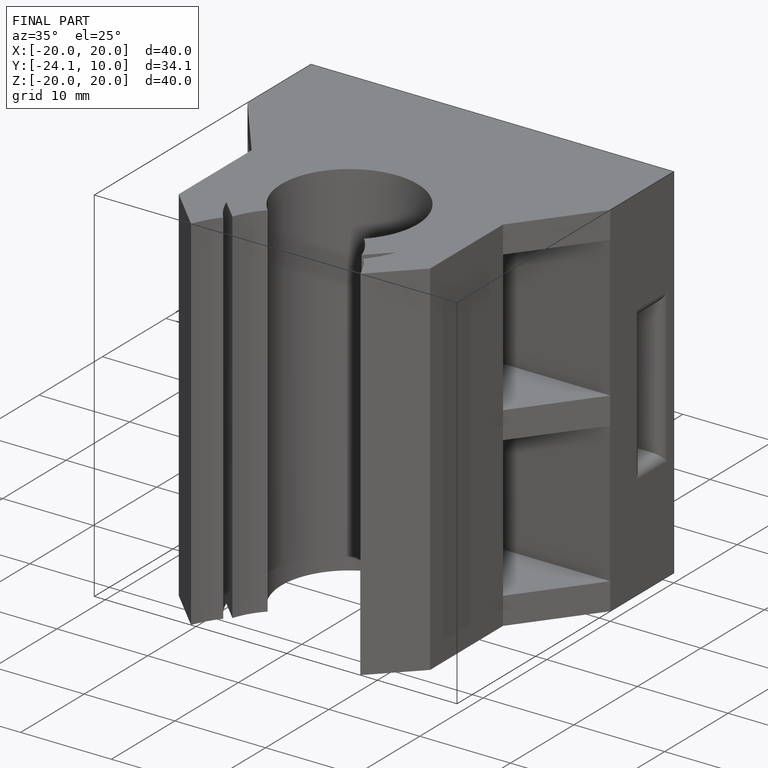
[diagram: finished part — iso view with bounding-box wireframe]
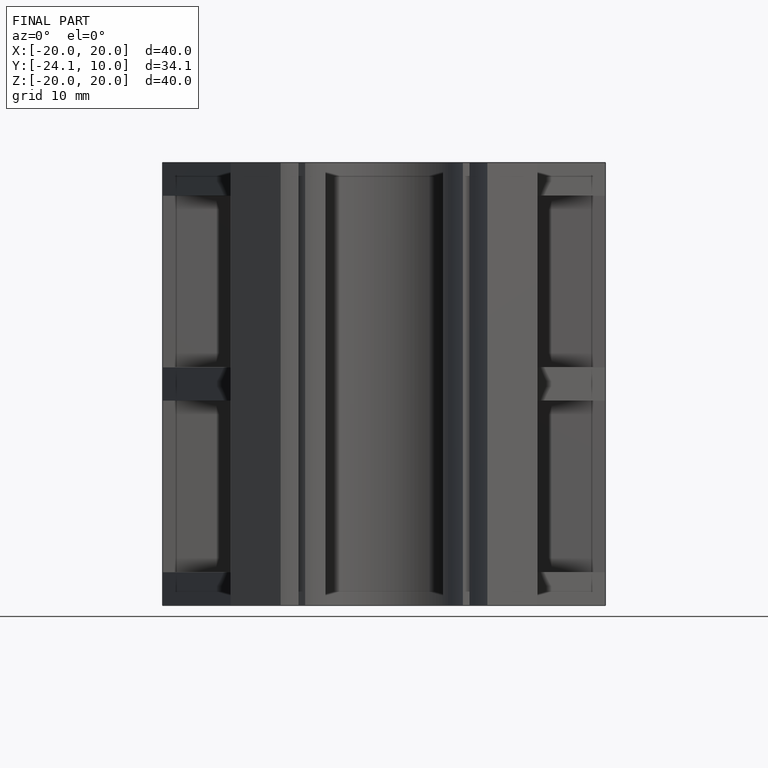
[diagram: finished part — front view with bounding-box wireframe]
